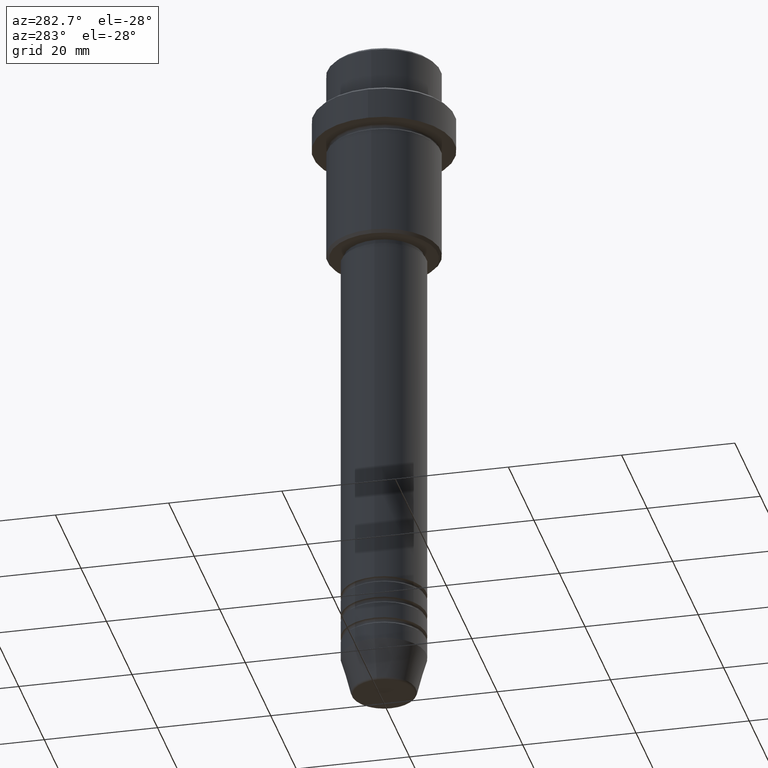
[diagram: clean part render]
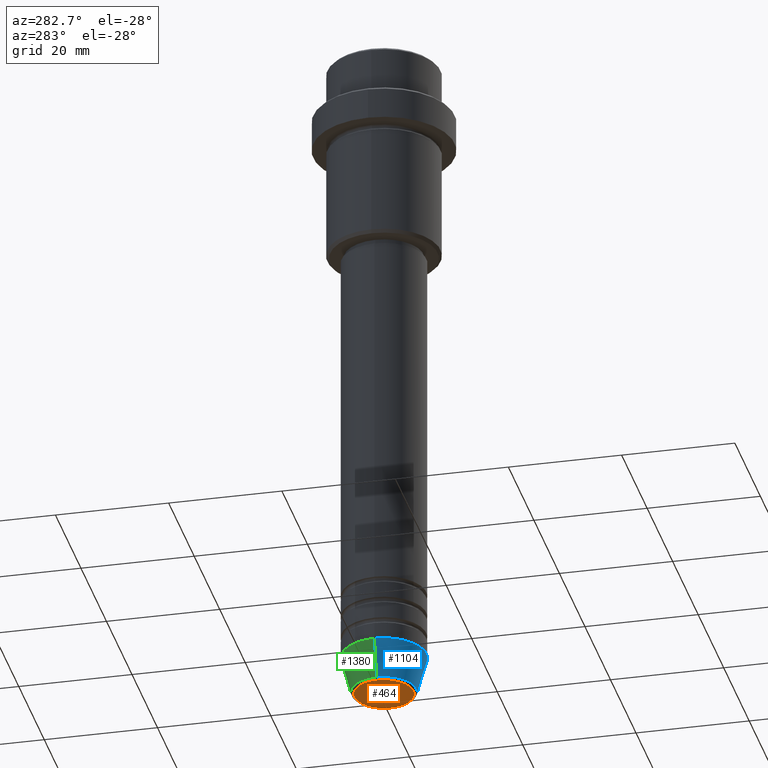
[diagram: same view with three faces highlighted in distinct colors, each labeled with its STEP entity id]
A machine part, auxiliary view with three faces highlighted in distinct colors.
Their STEP definitions:

[orange] entity #464 — the highlighted planar face has unit normal (0, -0, 1).
#43 = DIRECTION ( 'NONE',  ( 1.000000000000000000, 0.000000000000000000, 0.000000000000000000 ) ) ;
#84 = DIRECTION ( 'NONE',  ( 0.000000000000000000, -0.000000000000000000, 1.000000000000000000 ) ) ;
#133 = CIRCLE ( 'NONE', #939, 5.240692158992658278 ) ;
#194 = CARTESIAN_POINT ( 'NONE',  ( 5.240692158992658278, 0.000000000000000000, -121.0000000000000000 ) ) ;
#214 = DIRECTION ( 'NONE',  ( 0.000000000000000000, 0.000000000000000000, -1.000000000000000000 ) ) ;
#303 = ORIENTED_EDGE ( 'NONE', *, *, #423, .T. ) ;
#404 = CARTESIAN_POINT ( 'NONE',  ( 0.000000000000000000, 0.000000000000000000, -121.0000000000000000 ) ) ;
#423 = EDGE_CURVE ( 'NONE', #690, #571, #799, .T. ) ;
#431 = CARTESIAN_POINT ( 'NONE',  ( -5.240692158992658278, 6.713726370671658459E-16, -121.0000000000000000 ) ) ;
#464 = ADVANCED_FACE ( 'NONE', ( #734 ), #1173, .F. ) ;
#571 = VERTEX_POINT ( 'NONE', #431 ) ;
#618 = EDGE_CURVE ( 'NONE', #571, #690, #133, .T. ) ;
#636 = AXIS2_PLACEMENT_3D ( 'NONE', #1259, #1154, #43 ) ;
#690 = VERTEX_POINT ( 'NONE', #194 ) ;
#734 = FACE_OUTER_BOUND ( 'NONE', #1085, .T. ) ;
#799 = CIRCLE ( 'NONE', #636, 5.240692158992658278 ) ;
#915 = AXIS2_PLACEMENT_3D ( 'NONE', #1188, #84, #979 ) ;
#939 = AXIS2_PLACEMENT_3D ( 'NONE', #404, #214, #1086 ) ;
#979 = DIRECTION ( 'NONE',  ( 1.000000000000000000, 0.000000000000000000, 0.000000000000000000 ) ) ;
#1054 = ORIENTED_EDGE ( 'NONE', *, *, #618, .T. ) ;
#1085 = EDGE_LOOP ( 'NONE', ( #303, #1054 ) ) ;
#1086 = DIRECTION ( 'NONE',  ( 1.000000000000000000, 0.000000000000000000, 0.000000000000000000 ) ) ;
#1154 = DIRECTION ( 'NONE',  ( 0.000000000000000000, 0.000000000000000000, -1.000000000000000000 ) ) ;
#1173 = PLANE ( 'NONE',  #915 ) ;
#1188 = CARTESIAN_POINT ( 'NONE',  ( 0.000000000000000000, 0.000000000000000000, -121.0000000000000000 ) ) ;
#1259 = CARTESIAN_POINT ( 'NONE',  ( 0.000000000000000000, 0.000000000000000000, -121.0000000000000000 ) ) ;

[blue] entity #1104 — the highlighted conical surface has half-angle 15 deg.
#9 = VECTOR ( 'NONE', #87, 1000.000000000000000 ) ;
#17 = EDGE_CURVE ( 'NONE', #1362, #909, #632, .T. ) ;
#52 = CARTESIAN_POINT ( 'NONE',  ( -7.500000000000000000, 9.184850993605147944E-16, -114.0000000000000000 ) ) ;
#87 = DIRECTION ( 'NONE',  ( -0.2588190451025213501, 3.169619151431772337E-17, 0.9659258262890680902 ) ) ;
#180 = ORIENTED_EDGE ( 'NONE', *, *, #215, .T. ) ;
#196 = FACE_OUTER_BOUND ( 'NONE', #382, .T. ) ;
#215 = EDGE_CURVE ( 'NONE', #596, #909, #996, .T. ) ;
#279 = ORIENTED_EDGE ( 'NONE', *, *, #17, .F. ) ;
#285 = LINE ( 'NONE', #850, #9 ) ;
#335 = DIRECTION ( 'NONE',  ( -0.000000000000000000, -0.000000000000000000, 1.000000000000000000 ) ) ;
#382 = EDGE_LOOP ( 'NONE', ( #829, #1223, #180, #279 ) ) ;
#435 = VECTOR ( 'NONE', #1231, 1000.000000000000000 ) ;
#503 = AXIS2_PLACEMENT_3D ( 'NONE', #980, #335, #544 ) ;
#507 = CARTESIAN_POINT ( 'NONE',  ( 0.000000000000000000, 0.000000000000000000, -114.0000000000000000 ) ) ;
#544 = DIRECTION ( 'NONE',  ( 1.000000000000000000, 0.000000000000000000, 0.000000000000000000 ) ) ;
#565 = AXIS2_PLACEMENT_3D ( 'NONE', #507, #1082, #952 ) ;
#596 = VERTEX_POINT ( 'NONE', #868 ) ;
#632 = CIRCLE ( 'NONE', #565, 7.500000000000000000 ) ;
#634 = CARTESIAN_POINT ( 'NONE',  ( 0.000000000000000000, 0.000000000000000000, -114.0000000000000000 ) ) ;
#744 = CARTESIAN_POINT ( 'NONE',  ( 7.500000000000000000, 0.000000000000000000, -114.0000000000000000 ) ) ;
#755 = CONICAL_SURFACE ( 'NONE', #847, 7.500000000000000000, 0.2617993877991500740 ) ;
#780 = CIRCLE ( 'NONE', #503, 5.723655072137191269 ) ;
#829 = ORIENTED_EDGE ( 'NONE', *, *, #854, .F. ) ;
#847 = AXIS2_PLACEMENT_3D ( 'NONE', #634, #1080, #1317 ) ;
#850 = CARTESIAN_POINT ( 'NONE',  ( -7.500000000000000000, 9.184850993605147944E-16, -114.0000000000000000 ) ) ;
#854 = EDGE_CURVE ( 'NONE', #1119, #1362, #285, .T. ) ;
#868 = CARTESIAN_POINT ( 'NONE',  ( 5.723655072137191269, 0.000000000000000000, -120.6294095225512564 ) ) ;
#909 = VERTEX_POINT ( 'NONE', #744 ) ;
#952 = DIRECTION ( 'NONE',  ( 1.000000000000000000, 0.000000000000000000, 0.000000000000000000 ) ) ;
#980 = CARTESIAN_POINT ( 'NONE',  ( 0.000000000000000000, 0.000000000000000000, -120.6294095225512564 ) ) ;
#996 = LINE ( 'NONE', #1097, #435 ) ;
#1080 = DIRECTION ( 'NONE',  ( -0.000000000000000000, -0.000000000000000000, 1.000000000000000000 ) ) ;
#1082 = DIRECTION ( 'NONE',  ( -0.000000000000000000, -0.000000000000000000, 1.000000000000000000 ) ) ;
#1097 = CARTESIAN_POINT ( 'NONE',  ( 7.500000000000000000, 0.000000000000000000, -114.0000000000000000 ) ) ;
#1104 = ADVANCED_FACE ( 'NONE', ( #196 ), #755, .T. ) ;
#1117 = EDGE_CURVE ( 'NONE', #1119, #596, #780, .T. ) ;
#1119 = VERTEX_POINT ( 'NONE', #1200 ) ;
#1200 = CARTESIAN_POINT ( 'NONE',  ( -5.723655072137191269, 8.097153428560735915E-16, -120.6294095225512564 ) ) ;
#1223 = ORIENTED_EDGE ( 'NONE', *, *, #1117, .T. ) ;
#1231 = DIRECTION ( 'NONE',  ( 0.2588190451025213501, 0.000000000000000000, 0.9659258262890680902 ) ) ;
#1317 = DIRECTION ( 'NONE',  ( 1.000000000000000000, 0.000000000000000000, 0.000000000000000000 ) ) ;
#1362 = VERTEX_POINT ( 'NONE', #52 ) ;

[green] entity #1380 — the highlighted conical surface has half-angle 15 deg.
#9 = VECTOR ( 'NONE', #87, 1000.000000000000000 ) ;
#33 = CARTESIAN_POINT ( 'NONE',  ( 0.000000000000000000, 0.000000000000000000, -114.0000000000000000 ) ) ;
#35 = DIRECTION ( 'NONE',  ( 1.000000000000000000, 0.000000000000000000, 0.000000000000000000 ) ) ;
#52 = CARTESIAN_POINT ( 'NONE',  ( -7.500000000000000000, 9.184850993605147944E-16, -114.0000000000000000 ) ) ;
#87 = DIRECTION ( 'NONE',  ( -0.2588190451025213501, 3.169619151431772337E-17, 0.9659258262890680902 ) ) ;
#154 = CIRCLE ( 'NONE', #451, 5.723655072137191269 ) ;
#181 = AXIS2_PLACEMENT_3D ( 'NONE', #33, #698, #1144 ) ;
#215 = EDGE_CURVE ( 'NONE', #596, #909, #996, .T. ) ;
#273 = EDGE_LOOP ( 'NONE', ( #430, #630, #566, #428 ) ) ;
#285 = LINE ( 'NONE', #850, #9 ) ;
#332 = DIRECTION ( 'NONE',  ( -0.000000000000000000, -0.000000000000000000, 1.000000000000000000 ) ) ;
#428 = ORIENTED_EDGE ( 'NONE', *, *, #215, .F. ) ;
#429 = DIRECTION ( 'NONE',  ( 1.000000000000000000, 0.000000000000000000, 0.000000000000000000 ) ) ;
#430 = ORIENTED_EDGE ( 'NONE', *, *, #659, .T. ) ;
#435 = VECTOR ( 'NONE', #1231, 1000.000000000000000 ) ;
#451 = AXIS2_PLACEMENT_3D ( 'NONE', #1407, #1099, #429 ) ;
#480 = CONICAL_SURFACE ( 'NONE', #181, 7.500000000000000000, 0.2617993877991500740 ) ;
#566 = ORIENTED_EDGE ( 'NONE', *, *, #809, .F. ) ;
#596 = VERTEX_POINT ( 'NONE', #868 ) ;
#630 = ORIENTED_EDGE ( 'NONE', *, *, #854, .T. ) ;
#659 = EDGE_CURVE ( 'NONE', #596, #1119, #154, .T. ) ;
#698 = DIRECTION ( 'NONE',  ( -0.000000000000000000, -0.000000000000000000, 1.000000000000000000 ) ) ;
#708 = FACE_OUTER_BOUND ( 'NONE', #273, .T. ) ;
#744 = CARTESIAN_POINT ( 'NONE',  ( 7.500000000000000000, 0.000000000000000000, -114.0000000000000000 ) ) ;
#800 = CARTESIAN_POINT ( 'NONE',  ( 0.000000000000000000, 0.000000000000000000, -114.0000000000000000 ) ) ;
#809 = EDGE_CURVE ( 'NONE', #909, #1362, #1324, .T. ) ;
#850 = CARTESIAN_POINT ( 'NONE',  ( -7.500000000000000000, 9.184850993605147944E-16, -114.0000000000000000 ) ) ;
#854 = EDGE_CURVE ( 'NONE', #1119, #1362, #285, .T. ) ;
#868 = CARTESIAN_POINT ( 'NONE',  ( 5.723655072137191269, 0.000000000000000000, -120.6294095225512564 ) ) ;
#909 = VERTEX_POINT ( 'NONE', #744 ) ;
#996 = LINE ( 'NONE', #1097, #435 ) ;
#1055 = AXIS2_PLACEMENT_3D ( 'NONE', #800, #332, #35 ) ;
#1097 = CARTESIAN_POINT ( 'NONE',  ( 7.500000000000000000, 0.000000000000000000, -114.0000000000000000 ) ) ;
#1099 = DIRECTION ( 'NONE',  ( -0.000000000000000000, -0.000000000000000000, 1.000000000000000000 ) ) ;
#1119 = VERTEX_POINT ( 'NONE', #1200 ) ;
#1144 = DIRECTION ( 'NONE',  ( 1.000000000000000000, 0.000000000000000000, 0.000000000000000000 ) ) ;
#1200 = CARTESIAN_POINT ( 'NONE',  ( -5.723655072137191269, 8.097153428560735915E-16, -120.6294095225512564 ) ) ;
#1231 = DIRECTION ( 'NONE',  ( 0.2588190451025213501, 0.000000000000000000, 0.9659258262890680902 ) ) ;
#1324 = CIRCLE ( 'NONE', #1055, 7.500000000000000000 ) ;
#1362 = VERTEX_POINT ( 'NONE', #52 ) ;
#1380 = ADVANCED_FACE ( 'NONE', ( #708 ), #480, .T. ) ;
#1407 = CARTESIAN_POINT ( 'NONE',  ( 0.000000000000000000, 0.000000000000000000, -120.6294095225512564 ) ) ;